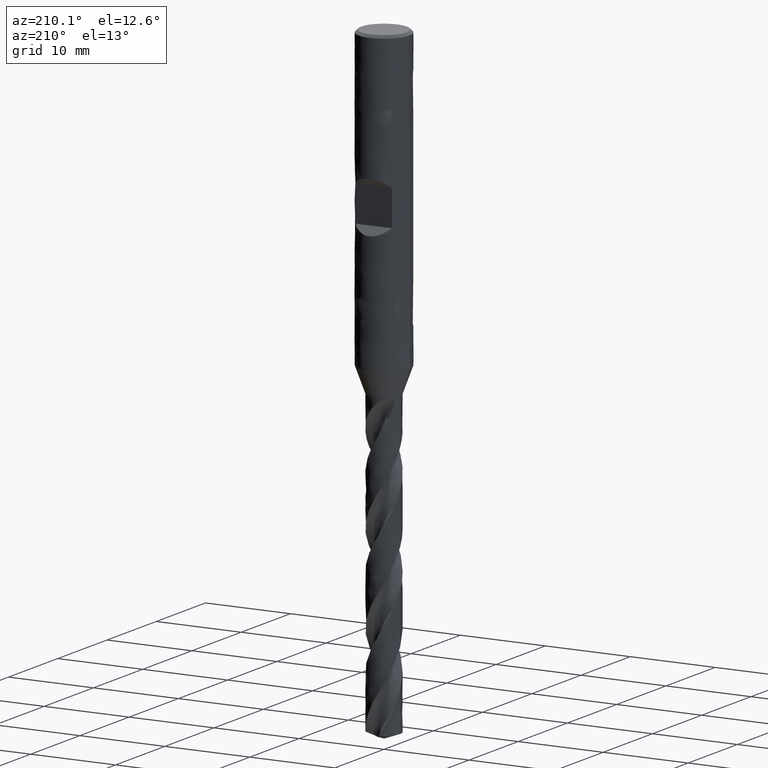
[diagram: clean part render]
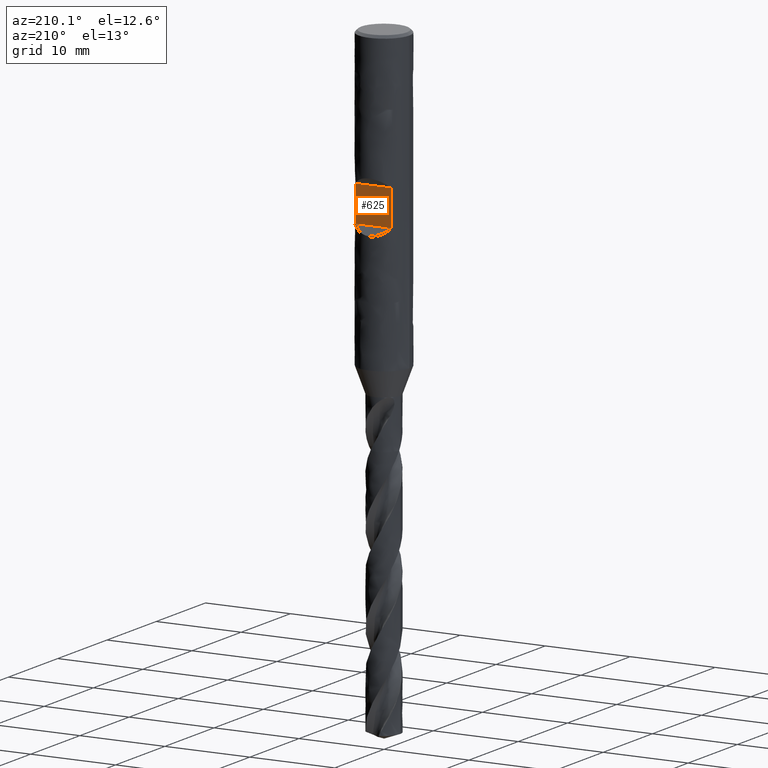
[diagram: same view with one face highlighted and labeled with its STEP entity id]
A machine part, auxiliary view. The second image highlights one B-rep face of the part: STEP entity #625.
In plain terms, the highlighted planar face has unit normal (0, 1, 0).
Its self-contained STEP definition (entity closure, byte-faithful):
#439 = VERTEX_POINT('', #440);
#440 = CARTESIAN_POINT('', (-2.14242852856285, 2.1, -15.9));
#441 = VERTEX_POINT('', #442);
#442 = CARTESIAN_POINT('', (2.14242852856286, 2.1, -15.9));
#518 = EDGE_CURVE('', #439, #519, #521, .T.);
#519 = VERTEX_POINT('', #520);
#520 = CARTESIAN_POINT('', (-2.14242852856285, 2.1, -20.1));
#521 = LINE('', #522, #523);
#522 = CARTESIAN_POINT('', (-2.14242852856285, 2.1, -15.9));
#523 = VECTOR('', #524, 4.2);
#524 = DIRECTION('', (0., 0., -4.2));
#527 = VERTEX_POINT('', #528);
#528 = CARTESIAN_POINT('', (2.14242852856286, 2.1, -20.1));
#601 = EDGE_CURVE('', #441, #527, #602, .T.);
#602 = LINE('', #603, #604);
#603 = CARTESIAN_POINT('', (2.14242852856286, 2.1, -15.9));
#604 = VECTOR('', #605, 4.2);
#605 = DIRECTION('', (4.44089209850063E-16, 4.44089209850063E-16, -4.2));
#625 = ADVANCED_FACE('', (#626), #642, .T.);
#626 = FACE_OUTER_BOUND('', #627, .T.);
#627 = EDGE_LOOP('', (#628, #629, #635, #636));
#628 = ORIENTED_EDGE('', *, *, #601, .T.);
#629 = ORIENTED_EDGE('', *, *, #630, .T.);
#630 = EDGE_CURVE('', #527, #519, #631, .T.);
#631 = LINE('', #632, #633);
#632 = CARTESIAN_POINT('', (2.14242852856286, 2.1, -20.1));
#633 = VECTOR('', #634, 4.28485705712571);
#634 = DIRECTION('', (-4.28485705712571, 4.44089209850063E-16, 0.));
#635 = ORIENTED_EDGE('', *, *, #518, .F.);
#636 = ORIENTED_EDGE('', *, *, #637, .F.);
#637 = EDGE_CURVE('', #441, #439, #638, .T.);
#638 = LINE('', #639, #640);
#639 = CARTESIAN_POINT('', (2.14242852856286, 2.1, -15.9));
#640 = VECTOR('', #641, 4.28485705712571);
#641 = DIRECTION('', (-4.28485705712571, 4.44089209850063E-16, 0.));
#642 = PLANE('', #643);
#643 = AXIS2_PLACEMENT_3D('', #644, #645, #646);
#644 = CARTESIAN_POINT('', (3., 2.1, -20.1));
#645 = DIRECTION('', (0., 1., 1.05735526154777E-16));
#646 = DIRECTION('', (-1., 0., 0.));